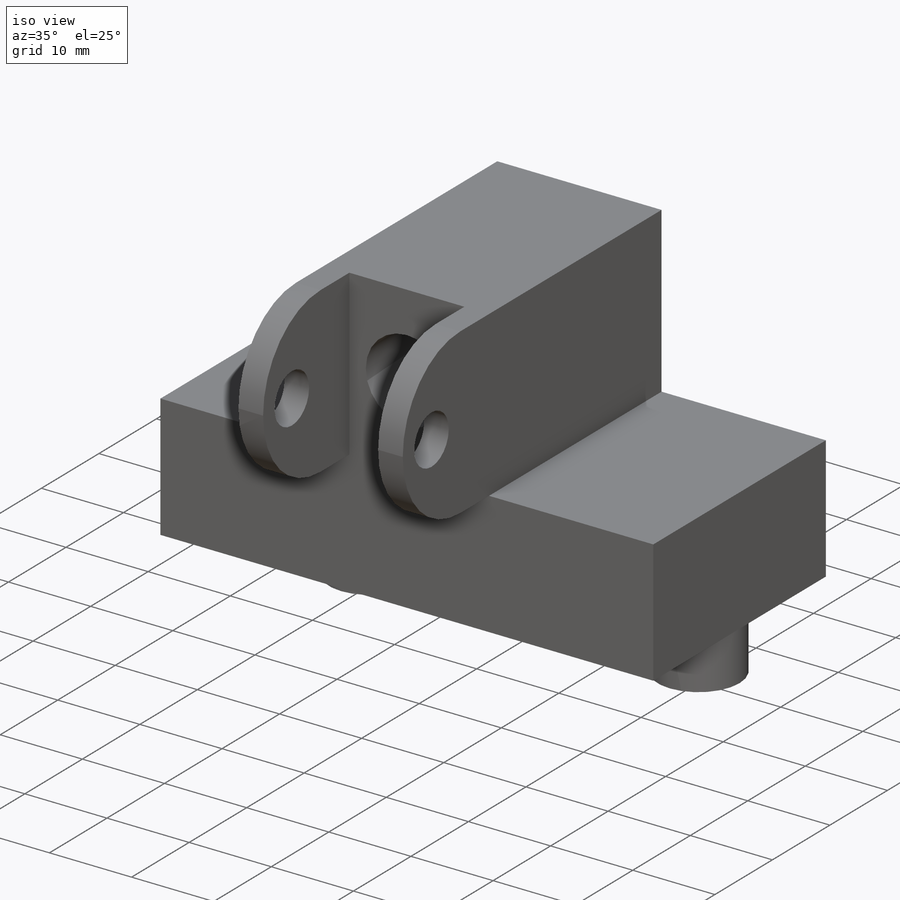
[diagram: iso view]
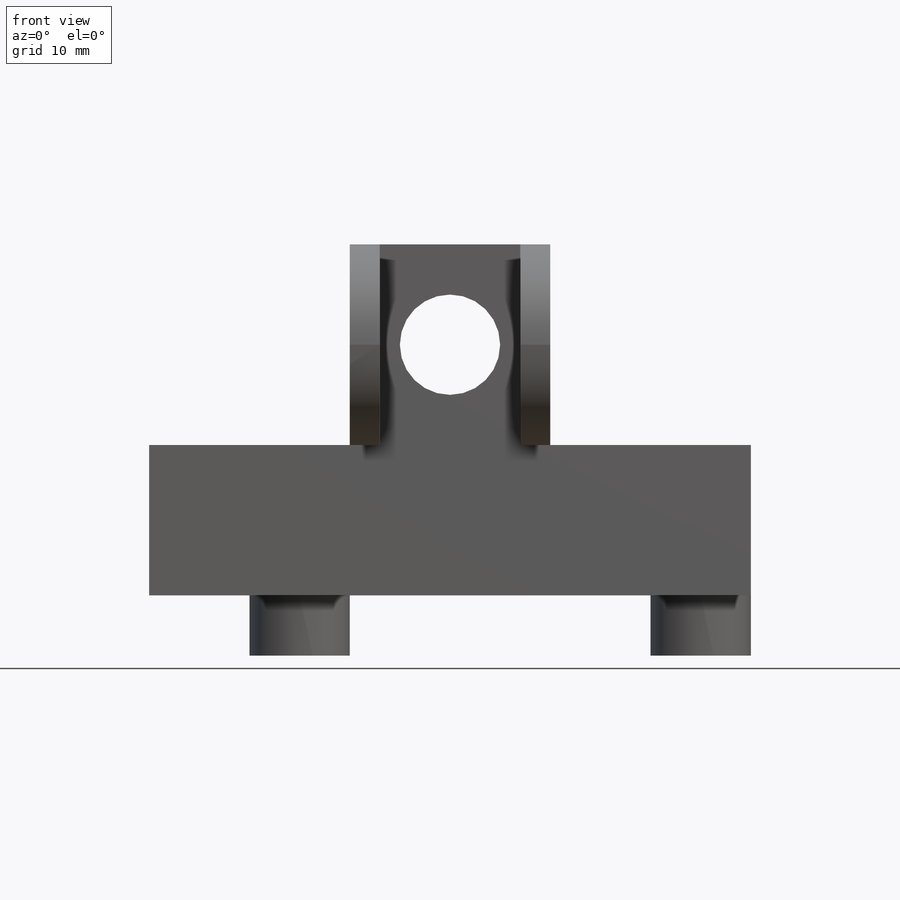
[diagram: front view]
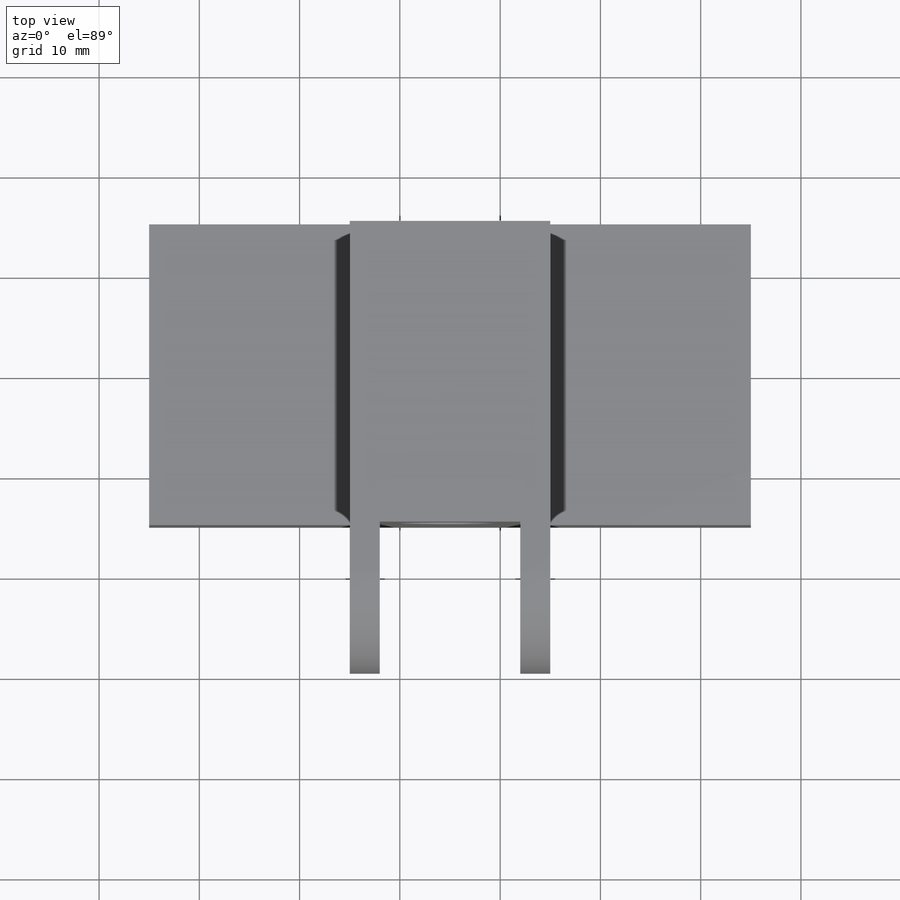
[diagram: top view]
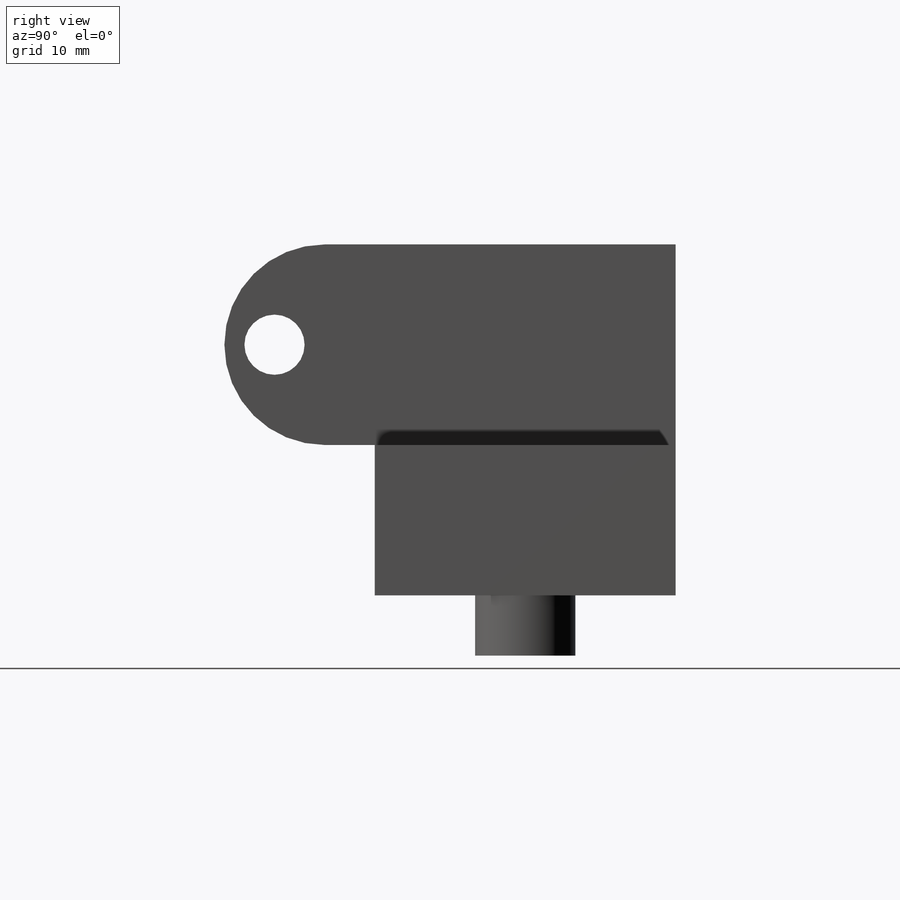
[diagram: right view]
SOLIDWORKS PART (.sldprt)
format: sldprt  version: not decoded by parser v0  size: 233,472 bytes
history: native  units: mm
features: sketch x6, extrude x4, fillet x4, plane x3, cut_extrude x2, material x1 (+10 scaffold rows collapsed)
feature tree (30):
  scaffold x10  (default folders/planes/origin — collapsed)
  material  "Matériau <non spécifié>"
  plane  "Plan de face"
  plane  "Plan de dessus"
  plane  "Plan de droite"
  sketch  "Esquisse2"  dims[D1=60.0mm D2=30.0mm D3=15.0mm]
  extrude  "Boss.-Extru.1"  Depth=15mm
  sketch  "Esquisse3"  dims[D2=~3.448705mm D1=20.0mm]
  extrude  "Boss.-Extru.2"  Depth=6mm
  sketch  "Esquisse4"  dims[D1=10.0mm D2=10.0mm]
  extrude  "Boss.-Extru.3"  Depth=20mm
  sketch  "Esquisse5"  dims[D1=10.0mm]
  cut_extrude  "Enlèv. mat.-Extru.1"  Depth=30mm
  sketch  "Esquisse6"  dims[D1=3.0mm D2=3.0mm]
  extrude  "Boss.-Extru.4"  Depth=15mm
  fillet  "Congé2"  Radius=10mm
  fillet  "Congé3"  Radius=10mm
  fillet  "Congé4"  Radius=10mm
  fillet  "Congé5"  Radius=10mm
  sketch  "Esquisse7"  dims[D1=~2.455915mm]
  cut_extrude  "Enlèv. mat.-Extru.2"  Depth=27mm
decode coverage: 16 of 16 modeling features carry decoded parameters
note: ~ marks probable driven/reference dimensions
note: suppression state not decoded; provenance and decode notes live in map.json
